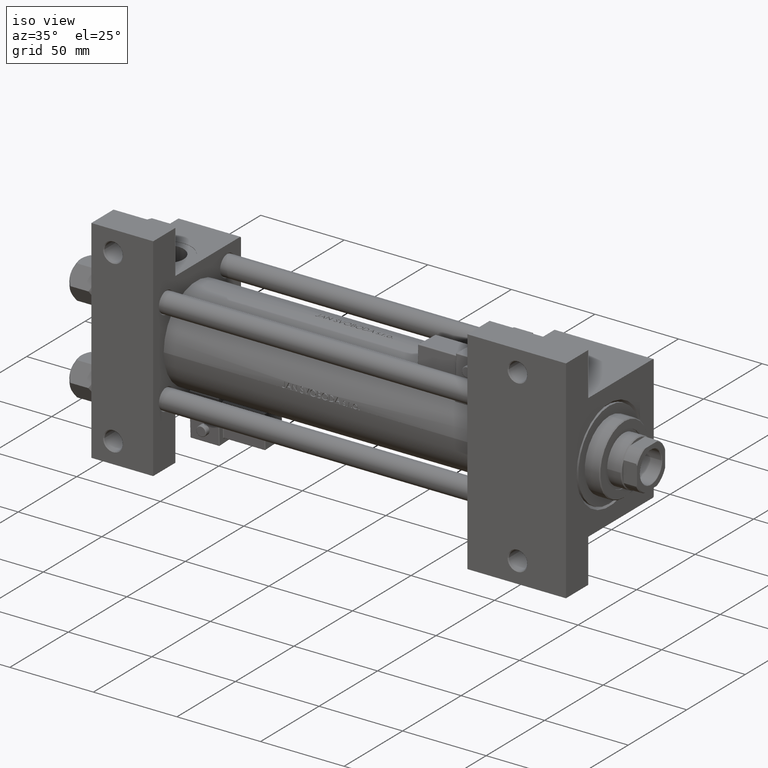
[diagram: clean part render]
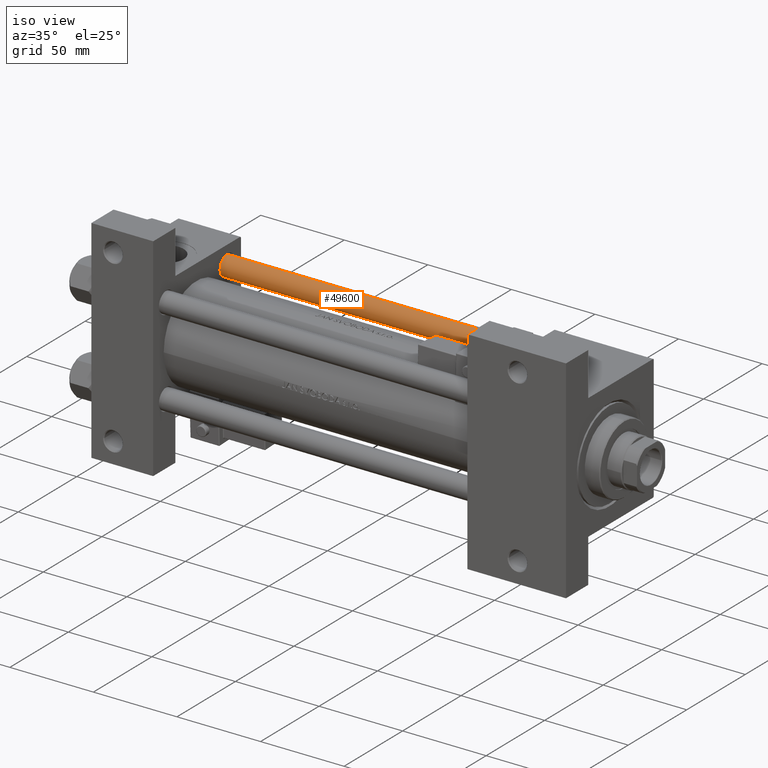
[diagram: same view with one face highlighted and labeled with its STEP entity id]
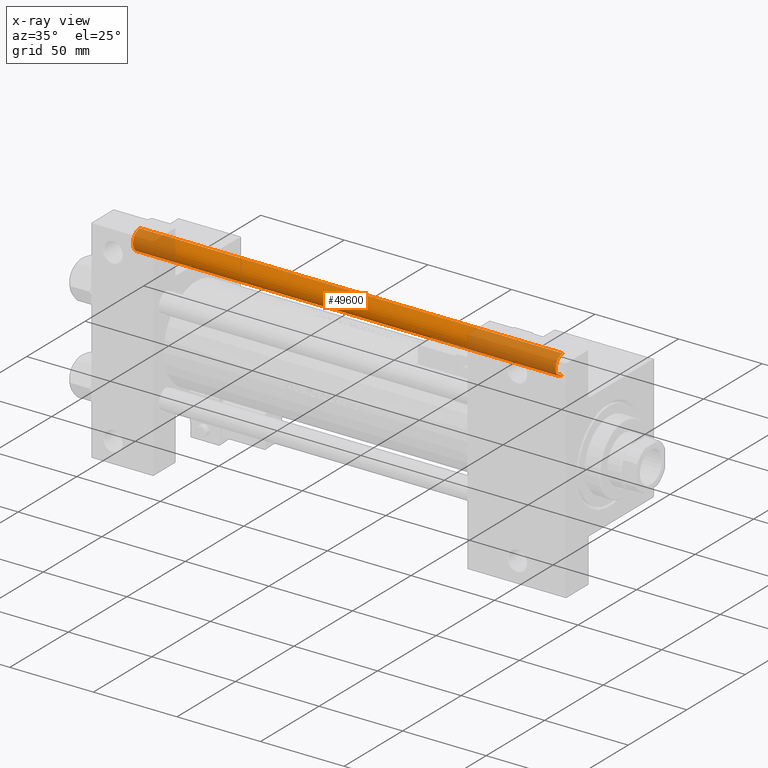
[diagram: x-ray of the same camera — body ghosted, the highlighted face saturated]
A machine part, iso view. The second image highlights one B-rep face of the part: STEP entity #49600.
The next image is the same camera in x-ray: the body ghosted, the highlighted face saturated — about 31% of this face is hidden behind the body in this view.
In plain terms, the highlighted cylindrical surface (edge-blend (fillet) strip) has radius 6 mm, axis along (-1, -0, -0).
Its self-contained STEP definition (entity closure, byte-faithful):
#1324 = ORIENTED_EDGE ( 'NONE', *, *, #11586, .T. ) ;
#1722 = DIRECTION ( 'NONE',  ( 1.000000000000000000, 0.000000000000000000, 0.000000000000000000 ) ) ;
#2750 = CIRCLE ( 'NONE', #47689, 6.000000000000000888 ) ;
#5768 = ORIENTED_EDGE ( 'NONE', *, *, #42883, .F. ) ;
#6251 = CARTESIAN_POINT ( 'NONE',  ( -6.000000000000000888, 0.000000000000000000, 254.0000000000000000 ) ) ;
#6516 = DIRECTION ( 'NONE',  ( -0.000000000000000000, -0.000000000000000000, -1.000000000000000000 ) ) ;
#7350 = EDGE_CURVE ( 'NONE', #31067, #30068, #41967, .T. ) ;
#7979 = CARTESIAN_POINT ( 'NONE',  ( 0.000000000000000000, 0.000000000000000000, 253.5000000000000568 ) ) ;
#8684 = EDGE_CURVE ( 'NONE', #30068, #31890, #10954, .T. ) ;
#10954 = CIRCLE ( 'NONE', #21811, 6.000000000000000888 ) ;
#10962 = DIRECTION ( 'NONE',  ( -0.000000000000000000, -0.000000000000000000, -1.000000000000000000 ) ) ;
#11586 = EDGE_CURVE ( 'NONE', #42074, #31067, #2750, .T. ) ;
#12037 = DIRECTION ( 'NONE',  ( -0.000000000000000000, -0.000000000000000000, -1.000000000000000000 ) ) ;
#12161 = DIRECTION ( 'NONE',  ( 0.000000000000000000, 0.000000000000000000, -1.000000000000000000 ) ) ;
#13184 = CARTESIAN_POINT ( 'NONE',  ( -6.000000000000000888, 0.000000000000000000, 253.5000000000000568 ) ) ;
#14264 = VECTOR ( 'NONE', #12037, 1000.000000000000000 ) ;
#15260 = AXIS2_PLACEMENT_3D ( 'NONE', #46689, #10962, #42782 ) ;
#18185 = ORIENTED_EDGE ( 'NONE', *, *, #8684, .T. ) ;
#21811 = AXIS2_PLACEMENT_3D ( 'NONE', #41338, #24933, #1722 ) ;
#22706 = VECTOR ( 'NONE', #6516, 1000.000000000000000 ) ;
#24933 = DIRECTION ( 'NONE',  ( -0.000000000000000000, -0.000000000000000000, 1.000000000000000000 ) ) ;
#26885 = FACE_OUTER_BOUND ( 'NONE', #50515, .T. ) ;
#30068 = VERTEX_POINT ( 'NONE', #31951 ) ;
#31067 = VERTEX_POINT ( 'NONE', #13184 ) ;
#31890 = VERTEX_POINT ( 'NONE', #37543 ) ;
#31951 = CARTESIAN_POINT ( 'NONE',  ( -6.000000000000000888, 0.000000000000000000, 0.5000000000000004441 ) ) ;
#32122 = LINE ( 'NONE', #32635, #14264 ) ;
#32237 = DIRECTION ( 'NONE',  ( 1.000000000000000000, 0.000000000000000000, 0.000000000000000000 ) ) ;
#32635 = CARTESIAN_POINT ( 'NONE',  ( 6.000000000000000888, 7.347880794884120722E-16, 254.0000000000000000 ) ) ;
#37543 = CARTESIAN_POINT ( 'NONE',  ( 6.000000000000000888, 7.347880794884120722E-16, 0.5000000000000004441 ) ) ;
#41338 = CARTESIAN_POINT ( 'NONE',  ( 0.000000000000000000, 0.000000000000000000, 0.5000000000000004441 ) ) ;
#41967 = LINE ( 'NONE', #6251, #22706 ) ;
#42074 = VERTEX_POINT ( 'NONE', #44209 ) ;
#42782 = DIRECTION ( 'NONE',  ( -1.000000000000000000, 0.000000000000000000, 0.000000000000000000 ) ) ;
#42883 = EDGE_CURVE ( 'NONE', #42074, #31890, #32122, .T. ) ;
#44209 = CARTESIAN_POINT ( 'NONE',  ( 6.000000000000000888, 7.347880794884120722E-16, 253.5000000000000568 ) ) ;
#46689 = CARTESIAN_POINT ( 'NONE',  ( 0.000000000000000000, 0.000000000000000000, 254.0000000000000000 ) ) ;
#47644 = ORIENTED_EDGE ( 'NONE', *, *, #7350, .T. ) ;
#47689 = AXIS2_PLACEMENT_3D ( 'NONE', #7979, #12161, #32237 ) ;
#49600 = ADVANCED_FACE ( 'NONE', ( #26885 ), #50596, .T. ) ;
#50515 = EDGE_LOOP ( 'NONE', ( #5768, #1324, #47644, #18185 ) ) ;
#50596 = CYLINDRICAL_SURFACE ( 'NONE', #15260, 6.000000000000000888 ) ;